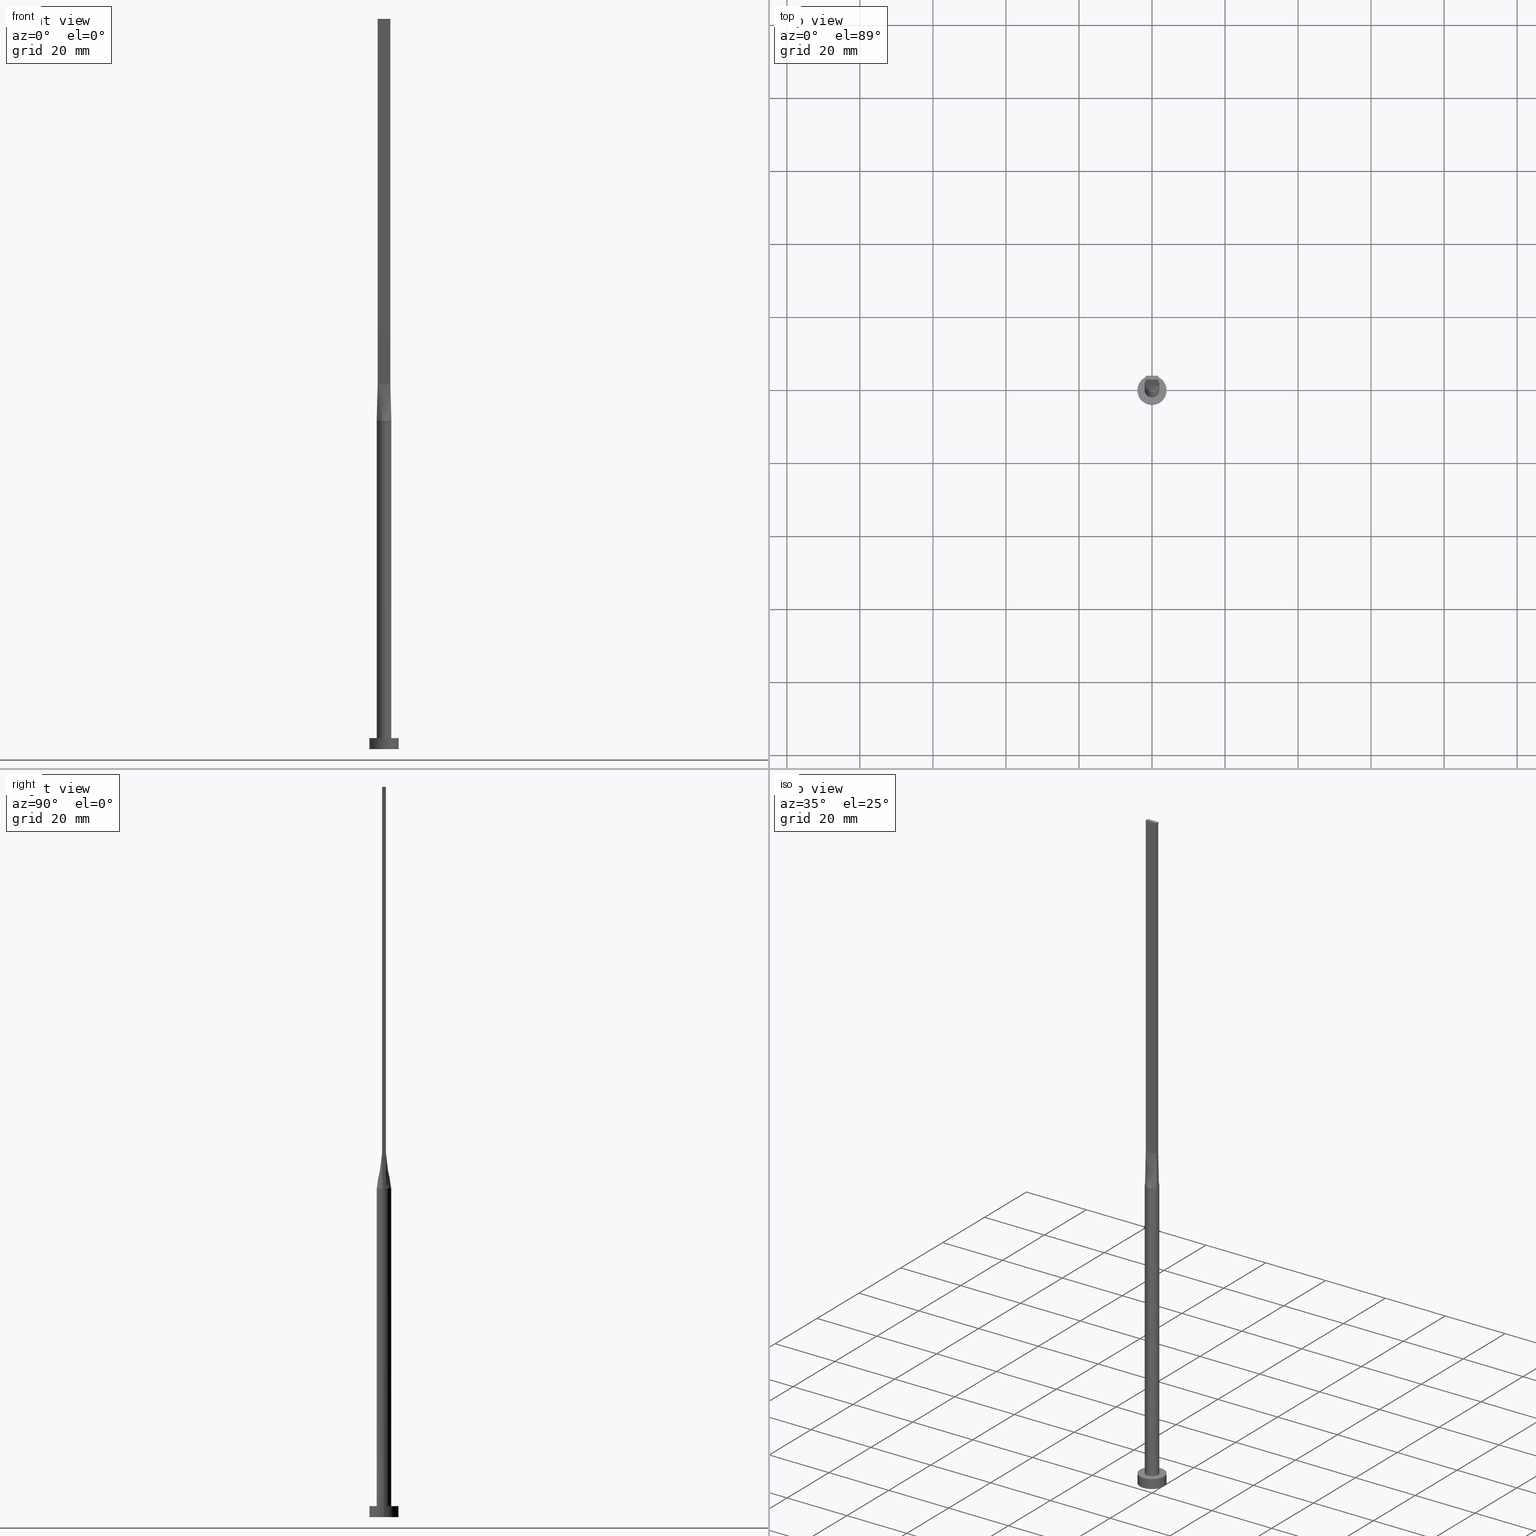
[diagram: canonical four-view strip — front | top / right | iso, engineering-drawing reading convention]
A machine part, canonical four-view strip (front | top / right | iso — engineering-drawing reading convention). The complete STEP part file that produces these views, byte-faithful:
ISO-10303-21;
HEADER;
FILE_DESCRIPTION (( 'STEP AP203' ),
    '1' );
FILE_NAME ('7435.STEP',
    '2026-02-12T09:06:15',
    ( '' ),
    ( '' ),
    'SwSTEP 2.0',
    'SolidWorks 2019',
    '' );
FILE_SCHEMA (( 'CONFIG_CONTROL_DESIGN' ));
ENDSEC;

DATA;
#1 = CYLINDRICAL_SURFACE ( 'NONE', #232, 4.000000000000000000 ) ;
#2 = PERSON_AND_ORGANIZATION ( #322, #56 ) ;
#3 = ADVANCED_FACE ( 'NONE', ( #273 ), #359, .T. ) ;
#4 = PERSON_AND_ORGANIZATION_ROLE ( 'design_supplier' ) ;
#5 = CARTESIAN_POINT ( 'NONE',  ( -1.923179810488875541, 0.5494804890868837388, 90.00000000000000000 ) ) ;
#6 = PRODUCT_RELATED_PRODUCT_CATEGORY ( 'detail', '', ( #287 ) ) ;
#7 = DIRECTION ( 'NONE',  ( 0.000000000000000000, -1.000000000000000000, 0.000000000000000000 ) ) ;
#8 = AXIS2_PLACEMENT_3D ( 'NONE', #415, #7, #186 ) ;
#9 = DIRECTION ( 'NONE',  ( 0.000000000000000000, 0.000000000000000000, 1.000000000000000000 ) ) ;
#10 = DIRECTION ( 'NONE',  ( 0.000000000000000000, 0.000000000000000000, 1.000000000000000000 ) ) ;
#11 = DIRECTION ( 'NONE',  ( 0.000000000000000000, 0.000000000000000000, 1.000000000000000000 ) ) ;
#12 = VERTEX_POINT ( 'NONE', #581 ) ;
#13 = LINE ( 'NONE', #286, #50 ) ;
#14 = CARTESIAN_POINT ( 'NONE',  ( -1.923047895281646102, 0.5494422557947564734, 90.00000000000000000 ) ) ;
#15 = ORIENTED_EDGE ( 'NONE', *, *, #410, .T. ) ;
#16 = VECTOR ( 'NONE', #502, 1000.000000000000000 ) ;
#17 = ADVANCED_FACE ( 'NONE', ( #131 ), #568, .F. ) ;
#18 = CARTESIAN_POINT ( 'NONE',  ( -1.973362360690451345, -0.3733416268639377367, 90.00000000000000000 ) ) ;
#19 = CARTESIAN_POINT ( 'NONE',  ( 1.749999999999999778, 0.3333333333333335369, 99.99999999999997158 ) ) ;
#20 = CARTESIAN_POINT ( 'NONE',  ( -1.750000000000000000, -0.4999999999999995559, 99.99999999999998579 ) ) ;
#21 = EDGE_LOOP ( 'NONE', ( #483, #456, #60, #556 ) ) ;
#22 = AXIS2_PLACEMENT_3D ( 'NONE', #197, #485, #95 ) ;
#23 = CARTESIAN_POINT ( 'NONE',  ( 0.000000000000000000, 0.000000000000000000, 3.000000000000000000 ) ) ;
#24 = CARTESIAN_POINT ( 'NONE',  ( 0.5833333333333323711, 0.5000000000000002220, 99.99999999999997158 ) ) ;
#25 = MANIFOLD_SOLID_BREP ( 'P�idat vysunut�m5', #180 ) ;
#26 = ORIENTED_EDGE ( 'NONE', *, *, #168, .T. ) ;
#27 = CARTESIAN_POINT ( 'NONE',  ( -4.000000000000000000, 0.000000000000000000, 3.000000000000000000 ) ) ;
#28 = LOCAL_TIME ( 10, 6, 15.00000000000000000, #97 ) ;
#29 = DIRECTION ( 'NONE',  ( 0.000000000000000000, 0.000000000000000000, 1.000000000000000000 ) ) ;
#30 = CARTESIAN_POINT ( 'NONE',  ( -0.2514338042514540073, -1.999999999999999112, 90.00000000000000000 ) ) ;
#31 = ORIENTED_EDGE ( 'NONE', *, *, #316, .T. ) ;
#32 = DIRECTION ( 'NONE',  ( -0.000000000000000000, -0.000000000000000000, -1.000000000000000000 ) ) ;
#33 = CARTESIAN_POINT ( 'NONE',  ( 1.604166666666666963, -0.4999999999999997780, 99.99999999999997158 ) ) ;
#34 = PRODUCT_DEFINITION ( 'NEZN�M�', '', #115, #396 ) ;
#35 = EDGE_LOOP ( 'NONE', ( #383, #43, #491, #268, #528, #169 ) ) ;
#36 = CARTESIAN_POINT ( 'NONE',  ( -0.1458333333333339810, 0.5000000000000002220, 99.99999999999997158 ) ) ;
#37 = CARTESIAN_POINT ( 'NONE',  ( 0.5022746254375793917, -1.951069421695588169, 90.00000000000000000 ) ) ;
#38 = VERTEX_POINT ( 'NONE', #124 ) ;
#39 = CYLINDRICAL_SURFACE ( 'NONE', #52, 4.000000000000000000 ) ;
#40 = CARTESIAN_POINT ( 'NONE',  ( -1.812374357931688884, 0.8669367617086288780, 90.00000000000001421 ) ) ;
#41 = ADVANCED_FACE ( 'NONE', ( #389 ), #85, .F. ) ;
#42 = AXIS2_PLACEMENT_3D ( 'NONE', #495, #275, #535 ) ;
#43 = ORIENTED_EDGE ( 'NONE', *, *, #346, .F. ) ;
#44 = PERSON_AND_ORGANIZATION ( #322, #56 ) ;
#45 = CARTESIAN_POINT ( 'NONE',  ( -0.2916666666666674068, 0.5000000000000002220, 99.99999999999997158 ) ) ;
#46 = DIRECTION ( 'NONE',  ( 0.000000000000000000, 0.000000000000000000, 1.000000000000000000 ) ) ;
#47 = DATE_AND_TIME ( #402, #28 ) ;
#48 = CARTESIAN_POINT ( 'NONE',  ( 0.000000000000000000, 0.000000000000000000, 0.000000000000000000 ) ) ;
#49 = EDGE_CURVE ( 'NONE', #266, #305, #242, .T. ) ;
#50 = VECTOR ( 'NONE', #236, 1000.000000000000000 ) ;
#51 = EDGE_CURVE ( 'NONE', #501, #38, #463, .T. ) ;
#52 = AXIS2_PLACEMENT_3D ( 'NONE', #134, #143, #319 ) ;
#53 = VECTOR ( 'NONE', #156, 1000.000000000000000 ) ;
#54 = LINE ( 'NONE', #368, #397 ) ;
#55 = CYLINDRICAL_SURFACE ( 'NONE', #448, 2.000000000000000000 ) ;
#56 = ORGANIZATION ( 'NEUR�EN�', 'NEUR�EN�', '' ) ;
#57 = B_SPLINE_SURFACE_WITH_KNOTS ( 'NONE', 3, 1, ( 
 ( #14, #250 ),
 ( #434, #160 ),
 ( #254, #567 ),
 ( #558, #334 ),
 ( #18, #194 ),
 ( #83, #116 ) ),
 .UNSPECIFIED., .F., .F., .F.,
 ( 4, 2, 4 ),
 ( 2, 2 ),
 ( 0.000000000000000000, 0.5000000000000000000, 1.000000000000000000 ),
 ( 0.000000000000000000, 1.000000000000000000 ),
 .UNSPECIFIED. ) ;
#58 = LINE ( 'NONE', #188, #533 ) ;
#59 = EDGE_CURVE ( 'NONE', #12, #82, #557, .T. ) ;
#60 = ORIENTED_EDGE ( 'NONE', *, *, #551, .F. ) ;
#61 = CARTESIAN_POINT ( 'NONE',  ( -1.155438169178558017, 1.647245198242353936, 90.00000000000004263 ) ) ;
#62 = EDGE_CURVE ( 'NONE', #82, #204, #342, .T. ) ;
#63 = ORIENTED_EDGE ( 'NONE', *, *, #546, .T. ) ;
#64 = FACE_OUTER_BOUND ( 'NONE', #253, .T. ) ;
#65 = CARTESIAN_POINT ( 'NONE',  ( 1.879022738048942154, 0.7035303061092218480, 90.00000000000001421 ) ) ;
#66 = DIRECTION ( 'NONE',  ( 1.000000000000000000, 0.000000000000000000, 0.000000000000000000 ) ) ;
#67 = DIRECTION ( 'NONE',  ( -1.000000000000000000, 0.000000000000000000, 0.000000000000000000 ) ) ;
#68 = ORIENTED_EDGE ( 'NONE', *, *, #346, .T. ) ;
#69 = CIRCLE ( 'NONE', #42, 2.000000000000000000 ) ;
#70 = ADVANCED_FACE ( 'NONE', ( #490 ), #366, .T. ) ;
#71 = DATE_AND_TIME ( #164, #363 ) ;
#72 = CARTESIAN_POINT ( 'NONE',  ( 1.486037034853319616, 1.356520562679217834, 90.00000000000001421 ) ) ;
#73 = CARTESIAN_POINT ( 'NONE',  ( 1.155438169178558461, 1.647245198242353714, 90.00000000000001421 ) ) ;
#74 = DIRECTION ( 'NONE',  ( 1.000000000000000000, -6.195440985631454085E-17, 0.000000000000000000 ) ) ;
#75 = VECTOR ( 'NONE', #103, 1000.000000000000000 ) ;
#76 = CARTESIAN_POINT ( 'NONE',  ( 1.836523947640823051, -0.5247211278973777926, 95.00000000000000000 ) ) ;
#77 = ORIENTED_EDGE ( 'NONE', *, *, #510, .F. ) ;
#78 = VECTOR ( 'NONE', #267, 1000.000000000000114 ) ;
#79 = CARTESIAN_POINT ( 'NONE',  ( 1.923154993136894975, 0.5494733089275741778, 90.00000000000000000 ) ) ;
#80 = FACE_OUTER_BOUND ( 'NONE', #313, .T. ) ;
#81 = CARTESIAN_POINT ( 'NONE',  ( 1.879022738048941710, -0.7035303061092221810, 90.00000000000001421 ) ) ;
#82 = VERTEX_POINT ( 'NONE', #302 ) ;
#83 = CARTESIAN_POINT ( 'NONE',  ( -1.923047895281646547, -0.5494422557947552521, 90.00000000000000000 ) ) ;
#84 = LINE ( 'NONE', #344, #139 ) ;
#85 = PLANE ( 'NONE',  #248 ) ;
#86 = CARTESIAN_POINT ( 'NONE',  ( 0.000000000000000000, 0.000000000000000000, 3.000000000000000000 ) ) ;
#87 = LINE ( 'NONE', #260, #547 ) ;
#88 = CARTESIAN_POINT ( 'NONE',  ( -1.812374357931689994, -0.8669367617086277678, 90.00000000000001421 ) ) ;
#89 = EDGE_LOOP ( 'NONE', ( #178, #425, #343, #63 ) ) ;
#90 = DIRECTION ( 'NONE',  ( -2.168404344971008868E-16, 1.000000000000000000, 0.000000000000000000 ) ) ;
#91 = CARTESIAN_POINT ( 'NONE',  ( -0.2514338042514528415, 1.999999999999999556, 90.00000000000001421 ) ) ;
#92 = ORIENTED_EDGE ( 'NONE', *, *, #519, .T. ) ;
#93 = ORIENTED_EDGE ( 'NONE', *, *, #179, .F. ) ;
#94 = DIRECTION ( 'NONE',  ( 1.000000000000000000, 0.000000000000000000, -0.000000000000000000 ) ) ;
#95 = DIRECTION ( 'NONE',  ( 1.000000000000000000, 0.000000000000000000, 0.000000000000000000 ) ) ;
#96 = ORIENTED_EDGE ( 'NONE', *, *, #450, .F. ) ;
#97 = COORDINATED_UNIVERSAL_TIME_OFFSET ( 1, 0, .AHEAD. ) ;
#98 = CARTESIAN_POINT ( 'NONE',  ( 0.000000000000000000, 0.000000000000000000, 3.000000000000000000 ) ) ;
#99 = CARTESIAN_POINT ( 'NONE',  ( -1.923047895281646325, 0.5494422557947555852, 90.00000000000000000 ) ) ;
#100 = CIRCLE ( 'NONE', #492, 2.000000000000000000 ) ;
#101 = APPROVAL_STATUS ( 'not_yet_approved' ) ;
#102 = ORIENTED_EDGE ( 'NONE', *, *, #372, .F. ) ;
#103 = DIRECTION ( 'NONE',  ( -0.000000000000000000, -0.000000000000000000, -1.000000000000000000 ) ) ;
#104 = ADVANCED_FACE ( 'NONE', ( #205 ), #57, .T. ) ;
#105 = CC_DESIGN_APPROVAL ( #362, ( #115 ) ) ;
#106 = DIRECTION ( 'NONE',  ( 0.000000000000000000, 0.000000000000000000, 1.000000000000000000 ) ) ;
#107 = PERSON_AND_ORGANIZATION ( #322, #56 ) ;
#108 = CIRCLE ( 'NONE', #149, 4.000000000000000000 ) ;
#109 = ADVANCED_FACE ( 'NONE', ( #373 ), #428, .T. ) ;
#110 = EDGE_LOOP ( 'NONE', ( #68, #473, #171, #370, #540 ) ) ;
#111 = LINE ( 'NONE', #550, #328 ) ;
#112 = B_SPLINE_SURFACE_WITH_KNOTS ( 'NONE', 3, 1, ( 
 ( #357, #523 ),
 ( #317, #117 ),
 ( #294, #476 ),
 ( #241, #563 ),
 ( #376, #481 ),
 ( #73, #246 ),
 ( #435, #24 ),
 ( #212, #580 ),
 ( #449, #176 ),
 ( #91, #36 ),
 ( #392, #45 ),
 ( #222, #572 ),
 ( #349, #264 ),
 ( #403, #216 ),
 ( #138, #182 ),
 ( #40, #358 ),
 ( #395, #542 ),
 ( #99, #141 ) ),
 .UNSPECIFIED., .F., .F., .F.,
 ( 4, 2, 2, 2, 2, 2, 2, 2, 4 ),
 ( 2, 2 ),
 ( 0.000000000000000000, 0.1249999999999999722, 0.2500000000000000000, 0.3750000000000000000, 0.5000000000000001110, 0.6250000000000001110, 0.7500000000000000000, 0.8750000000000000000, 1.000000000000000000 ),
 ( 0.000000000000000000, 1.000000000000000000 ),
 .UNSPECIFIED. ) ;
#113 = ORIENTED_EDGE ( 'NONE', *, *, #410, .F. ) ;
#114 = DIRECTION ( 'NONE',  ( -0.000000000000000000, -0.000000000000000000, -1.000000000000000000 ) ) ;
#115 = PRODUCT_DEFINITION_FORMATION_WITH_SPECIFIED_SOURCE ( 'LIBOVOLN�', '', #287, .NOT_KNOWN. ) ;
#116 = CARTESIAN_POINT ( 'NONE',  ( -1.750000000000000000, -0.4999999999999995559, 99.99999999999998579 ) ) ;
#117 = CARTESIAN_POINT ( 'NONE',  ( 1.604166666666665630, 0.5000000000000002220, 99.99999999999997158 ) ) ;
#118 = APPROVAL_DATE_TIME ( #196, #362 ) ;
#119 = APPROVAL ( #579, 'NEUR�EN�' ) ;
#120 = CARTESIAN_POINT ( 'NONE',  ( 1.166666666666666963, -0.4999999999999997780, 99.99999999999997158 ) ) ;
#121 = ORIENTED_EDGE ( 'NONE', *, *, #168, .F. ) ;
#122 = CARTESIAN_POINT ( 'NONE',  ( 0.000000000000000000, 0.000000000000000000, 90.00000000000000000 ) ) ;
#123 = CARTESIAN_POINT ( 'NONE',  ( 1.749999999999999778, 0.1666666666666668795, 99.99999999999997158 ) ) ;
#124 = CARTESIAN_POINT ( 'NONE',  ( 1.923154993136894975, 0.5494733089275741778, 90.00000000000000000 ) ) ;
#125 = VERTEX_POINT ( 'NONE', #170 ) ;
#126 = CARTESIAN_POINT ( 'NONE',  ( -0.5022746254375797248, 1.951069421695588169, 90.00000000000000000 ) ) ;
#127 = FACE_OUTER_BOUND ( 'NONE', #469, .T. ) ;
#128 = CARTESIAN_POINT ( 'NONE',  ( 1.750000000000000000, -0.4999999999999997780, 200.0000000000000000 ) ) ;
#129 = VERTEX_POINT ( 'NONE', #555 ) ;
#130 = CARTESIAN_POINT ( 'NONE',  ( 1.616149014776643522, 1.193458220519943103, 89.99999999999995737 ) ) ;
#131 = FACE_OUTER_BOUND ( 'NONE', #531, .T. ) ;
#132 = CC_DESIGN_SECURITY_CLASSIFICATION ( #545, ( #115 ) ) ;
#133 = DIRECTION ( 'NONE',  ( 1.000000000000000000, -2.168404344971009361E-16, 0.000000000000000000 ) ) ;
#134 = CARTESIAN_POINT ( 'NONE',  ( 0.000000000000000000, 0.000000000000000000, 3.000000000000000000 ) ) ;
#135 = EDGE_CURVE ( 'NONE', #390, #125, #577, .T. ) ;
#136 = VERTEX_POINT ( 'NONE', #27 ) ;
#137 = CARTESIAN_POINT ( 'NONE',  ( 1.750000000000000000, -0.4999999999999997780, 200.0000000000000000 ) ) ;
#138 = CARTESIAN_POINT ( 'NONE',  ( -1.616149014776643966, 1.193458220519943103, 90.00000000000001421 ) ) ;
#139 = VECTOR ( 'NONE', #32, 1000.000000000000000 ) ;
#140 = PERSON_AND_ORGANIZATION ( #322, #56 ) ;
#141 = CARTESIAN_POINT ( 'NONE',  ( -1.749999999999999778, 0.5000000000000002220, 99.99999999999998579 ) ) ;
#142 = LINE ( 'NONE', #335, #78 ) ;
#143 = DIRECTION ( 'NONE',  ( -0.000000000000000000, -0.000000000000000000, -1.000000000000000000 ) ) ;
#144 = CC_DESIGN_PERSON_AND_ORGANIZATION_ASSIGNMENT ( #466, #548, ( #287 ) ) ;
#145 = LOCAL_TIME ( 10, 6, 15.00000000000000000, #274 ) ;
#146 = APPROVAL_ROLE ( '' ) ;
#147 = EDGE_CURVE ( 'NONE', #266, #235, #384, .T. ) ;
#148 = DIRECTION ( 'NONE',  ( -2.168404344971009361E-16, -1.000000000000000000, 0.000000000000000000 ) ) ;
#149 = AXIS2_PLACEMENT_3D ( 'NONE', #341, #29, #66 ) ;
#150 = CARTESIAN_POINT ( 'NONE',  ( 1.750000000000000000, -0.4999999999999997780, 200.0000000000000000 ) ) ;
#151 = EDGE_CURVE ( 'NONE', #195, #266, #340, .T. ) ;
#152 = VECTOR ( 'NONE', #114, 1000.000000000000000 ) ;
#153 = ORIENTED_EDGE ( 'NONE', *, *, #510, .T. ) ;
#154 = CARTESIAN_POINT ( 'NONE',  ( -4.000000000000000000, 0.000000000000000000, 0.000000000000000000 ) ) ;
#155 = EDGE_CURVE ( 'NONE', #561, #159, #522, .T. ) ;
#156 = DIRECTION ( 'NONE',  ( -2.168404344971009361E-16, -1.000000000000000000, 0.000000000000000000 ) ) ;
#157 = VECTOR ( 'NONE', #203, 1000.000000000000114 ) ;
#158 = CARTESIAN_POINT ( 'NONE',  ( 1.616149014776643522, -1.193458220519943547, 90.00000000000001421 ) ) ;
#159 = VERTEX_POINT ( 'NONE', #306 ) ;
#160 = CARTESIAN_POINT ( 'NONE',  ( -1.749999999999999778, 0.3333333333333335924, 99.99999999999997158 ) ) ;
#161 = CARTESIAN_POINT ( 'NONE',  ( 1.750000000000000000, -0.4999999999999997780, 99.99999999999998579 ) ) ;
#162 = CARTESIAN_POINT ( 'NONE',  ( 0.5833333333333344806, -0.4999999999999997780, 99.99999999999997158 ) ) ;
#163 = ORIENTED_EDGE ( 'NONE', *, *, #271, .T. ) ;
#164 = CALENDAR_DATE ( 2026, 12, 2 ) ;
#165 = DIRECTION ( 'NONE',  ( 1.000000000000000000, 0.000000000000000000, 0.000000000000000000 ) ) ;
#166 = CARTESIAN_POINT ( 'NONE',  ( -1.879022738048941710, 0.7035303061092221810, 90.00000000000001421 ) ) ;
#167 = CARTESIAN_POINT ( 'NONE',  ( -1.458333333333332815, -0.4999999999999995559, 99.99999999999997158 ) ) ;
#168 = EDGE_CURVE ( 'NONE', #38, #538, #406, .T. ) ;
#169 = ORIENTED_EDGE ( 'NONE', *, *, #135, .T. ) ;
#170 = CARTESIAN_POINT ( 'NONE',  ( 2.000000000000000000, 2.449293598294706414E-16, 3.000000000000000000 ) ) ;
#171 = ORIENTED_EDGE ( 'NONE', *, *, #177, .T. ) ;
#172 = APPROVAL_PERSON_ORGANIZATION ( #107, #362, #146 ) ;
#173 =( NAMED_UNIT ( * ) PLANE_ANGLE_UNIT ( ) SI_UNIT ( $, .RADIAN. ) );
#174 = CARTESIAN_POINT ( 'NONE',  ( -0.5022746254375808350, -1.951069421695587724, 89.99999999999998579 ) ) ;
#175 = ORIENTED_EDGE ( 'NONE', *, *, #450, .T. ) ;
#176 = CARTESIAN_POINT ( 'NONE',  ( 0.1458333333333327320, 0.5000000000000002220, 99.99999999999997158 ) ) ;
#177 = EDGE_CURVE ( 'NONE', #38, #159, #142, .T. ) ;
#178 = ORIENTED_EDGE ( 'NONE', *, *, #320, .T. ) ;
#179 = EDGE_CURVE ( 'NONE', #136, #552, #283, .T. ) ;
#180 = CLOSED_SHELL ( 'NONE', ( #109, #472, #244, #224, #277, #544, #70, #211, #104, #234, #426, #41, #405, #17, #3 ) ) ;
#181 = CARTESIAN_POINT ( 'NONE',  ( -4.000000000000000000, 0.000000000000000000, 3.000000000000000000 ) ) ;
#182 = CARTESIAN_POINT ( 'NONE',  ( -1.166666666666666519, 0.5000000000000002220, 99.99999999999997158 ) ) ;
#183 = DIRECTION ( 'NONE',  ( 1.000000000000000000, 0.000000000000000000, 0.000000000000000000 ) ) ;
#184 = DATE_AND_TIME ( #455, #285 ) ;
#185 = CALENDAR_DATE ( 2026, 12, 2 ) ;
#186 = DIRECTION ( 'NONE',  ( 0.000000000000000000, -0.000000000000000000, -1.000000000000000000 ) ) ;
#187 = APPLICATION_PROTOCOL_DEFINITION ( 'international standard', 'config_control_design', 1994, #284 ) ;
#188 = CARTESIAN_POINT ( 'NONE',  ( -1.836523947640823051, 0.5247211278973779036, 95.00000000000000000 ) ) ;
#189 = DIRECTION ( 'NONE',  ( 1.000000000000000000, 0.000000000000000000, 0.000000000000000000 ) ) ;
#190 = EDGE_CURVE ( 'NONE', #478, #378, #108, .T. ) ;
#191 = DIRECTION ( 'NONE',  ( 0.01730198768854153066, -0.004943425053868934910, 0.9998380887777591486 ) ) ;
#192 = EDGE_LOOP ( 'NONE', ( #210, #220, #444, #238, #258, #121 ) ) ;
#193 = CC_DESIGN_PERSON_AND_ORGANIZATION_ASSIGNMENT ( #44, #4, ( #115 ) ) ;
#194 = CARTESIAN_POINT ( 'NONE',  ( -1.749999999999999778, -0.3333333333333328707, 99.99999999999997158 ) ) ;
#195 = VERTEX_POINT ( 'NONE', #353 ) ;
#196 = DATE_AND_TIME ( #474, #458 ) ;
#197 = CARTESIAN_POINT ( 'NONE',  ( 0.000000000000000000, 0.000000000000000000, 3.000000000000000000 ) ) ;
#198 = AXIS2_PLACEMENT_3D ( 'NONE', #122, #380, #297 ) ;
#199 = CARTESIAN_POINT ( 'NONE',  ( -1.155438169178558461, -1.647245198242353714, 90.00000000000001421 ) ) ;
#200 = CC_DESIGN_APPROVAL ( #323, ( #34 ) ) ;
#201 = CARTESIAN_POINT ( 'NONE',  ( 0.2514338042514535632, 1.999999999999999556, 90.00000000000000000 ) ) ;
#202 = CARTESIAN_POINT ( 'NONE',  ( 1.749999999999999778, -0.1666666666666664354, 99.99999999999997158 ) ) ;
#203 = DIRECTION ( 'NONE',  ( -0.01730198768854150984, 0.004943425053869000829, 0.9998380887777591486 ) ) ;
#204 = VERTEX_POINT ( 'NONE', #518 ) ;
#205 = FACE_OUTER_BOUND ( 'NONE', #488, .T. ) ;
#206 = CARTESIAN_POINT ( 'NONE',  ( 1.999999999999999556, 0.1867399261870121008, 89.99999999999997158 ) ) ;
#207 = CARTESIAN_POINT ( 'NONE',  ( -1.616149014776643744, -1.193458220519941326, 89.99999999999998579 ) ) ;
#208 = EDGE_LOOP ( 'NONE', ( #423, #348 ) ) ;
#209 = CARTESIAN_POINT ( 'NONE',  ( 1.923047895281646325, -0.5494422557947558072, 90.00000000000000000 ) ) ;
#210 = ORIENTED_EDGE ( 'NONE', *, *, #51, .F. ) ;
#211 = ADVANCED_FACE ( 'NONE', ( #536 ), #369, .T. ) ;
#212 = CARTESIAN_POINT ( 'NONE',  ( 0.5022746254375803909, 1.951069421695587947, 90.00000000000001421 ) ) ;
#213 = CARTESIAN_POINT ( 'NONE',  ( 0.9545234919502404436, -1.774214358793530177, 90.00000000000001421 ) ) ;
#214 = ORIENTED_EDGE ( 'NONE', *, *, #468, .F. ) ;
#215 = CC_DESIGN_DATE_AND_TIME_ASSIGNMENT ( #47, #457, ( #545 ) ) ;
#216 = CARTESIAN_POINT ( 'NONE',  ( -1.020833333333333481, 0.5000000000000002220, 99.99999999999997158 ) ) ;
#217 = DIRECTION ( 'NONE',  ( -1.000000000000000000, 0.000000000000000000, 0.000000000000000000 ) ) ;
#218 = CARTESIAN_POINT ( 'NONE',  ( 1.749999999999999778, 0.5000000000000002220, 99.99999999999998579 ) ) ;
#219 = ORIENTED_EDGE ( 'NONE', *, *, #190, .T. ) ;
#220 = ORIENTED_EDGE ( 'NONE', *, *, #361, .T. ) ;
#221 = PERSON_AND_ORGANIZATION_ROLE ( 'classification_officer' ) ;
#222 = CARTESIAN_POINT ( 'NONE',  ( -0.9545234919502401105, 1.774214358793530177, 90.00000000000000000 ) ) ;
#223 = CARTESIAN_POINT ( 'NONE',  ( 0.000000000000000000, 0.000000000000000000, 200.0000000000000000 ) ) ;
#224 = ADVANCED_FACE ( 'NONE', ( #452, #127 ), #429, .T. ) ;
#225 = CARTESIAN_POINT ( 'NONE',  ( 4.000000000000000000, 4.898587196589412829E-16, 0.000000000000000000 ) ) ;
#226 = AXIS2_PLACEMENT_3D ( 'NONE', #128, #345, #477 ) ;
#227 = CIRCLE ( 'NONE', #559, 4.000000000000000000 ) ;
#228 = PLANE ( 'NONE',  #8 ) ;
#229 = CARTESIAN_POINT ( 'NONE',  ( 0.000000000000000000, 0.000000000000000000, 90.00000000000000000 ) ) ;
#230 = CARTESIAN_POINT ( 'NONE',  ( 0.000000000000000000, 0.000000000000000000, 90.00000000000000000 ) ) ;
#231 = CARTESIAN_POINT ( 'NONE',  ( 0.000000000000000000, 0.000000000000000000, 3.000000000000000000 ) ) ;
#232 = AXIS2_PLACEMENT_3D ( 'NONE', #86, #259, #504 ) ;
#233 = CARTESIAN_POINT ( 'NONE',  ( -1.749999999999999778, 0.5000000000000002220, 99.99999999999998579 ) ) ;
#234 = ADVANCED_FACE ( 'NONE', ( #80 ), #112, .T. ) ;
#235 = VERTEX_POINT ( 'NONE', #398 ) ;
#236 = DIRECTION ( 'NONE',  ( -2.168404344971008868E-16, 1.000000000000000000, -0.000000000000000000 ) ) ;
#237 = CARTESIAN_POINT ( 'NONE',  ( -1.486037034853319616, 1.356520562679218056, 90.00000000000004263 ) ) ;
#238 = ORIENTED_EDGE ( 'NONE', *, *, #256, .F. ) ;
#239 = LINE ( 'NONE', #288, #270 ) ;
#240 = CARTESIAN_POINT ( 'NONE',  ( 0.9545234919502409987, 1.774214358793529955, 90.00000000000001421 ) ) ;
#241 = CARTESIAN_POINT ( 'NONE',  ( 1.616149014776643522, 1.193458220519943103, 89.99999999999995737 ) ) ;
#242 = LINE ( 'NONE', #436, #375 ) ;
#243 = EDGE_LOOP ( 'NONE', ( #175, #431, #578, #509 ) ) ;
#244 = ADVANCED_FACE ( 'NONE', ( #532 ), #39, .T. ) ;
#245 = CARTESIAN_POINT ( 'NONE',  ( 0.5022746254375803909, 1.951069421695587947, 90.00000000000001421 ) ) ;
#246 = CARTESIAN_POINT ( 'NONE',  ( 0.7291666666666657415, 0.5000000000000002220, 99.99999999999997158 ) ) ;
#247 = CARTESIAN_POINT ( 'NONE',  ( -1.749999999999999778, 0.5000000000000002220, 99.99999999999998579 ) ) ;
#248 = AXIS2_PLACEMENT_3D ( 'NONE', #393, #133, #347 ) ;
#249 = CARTESIAN_POINT ( 'NONE',  ( -1.879022738048942598, -0.7035303061092208488, 90.00000000000001421 ) ) ;
#250 = CARTESIAN_POINT ( 'NONE',  ( -1.749999999999999778, 0.5000000000000002220, 99.99999999999998579 ) ) ;
#251 = CARTESIAN_POINT ( 'NONE',  ( 1.973362360690451567, 0.3733416268639386804, 90.00000000000000000 ) ) ;
#252 = DIRECTION ( 'NONE',  ( 1.000000000000000000, 0.000000000000000000, 0.000000000000000000 ) ) ;
#253 = EDGE_LOOP ( 'NONE', ( #400, #113, #263, #441 ) ) ;
#254 = CARTESIAN_POINT ( 'NONE',  ( -1.999999999999999556, 0.1867399261870127114, 90.00000000000001421 ) ) ;
#255 =( NAMED_UNIT ( * ) SI_UNIT ( $, .STERADIAN. ) SOLID_ANGLE_UNIT ( ) );
#256 = EDGE_CURVE ( 'NONE', #129, #390, #573, .T. ) ;
#257 = CARTESIAN_POINT ( 'NONE',  ( 0.2916666666666679064, -0.4999999999999997780, 99.99999999999997158 ) ) ;
#258 = ORIENTED_EDGE ( 'NONE', *, *, #519, .F. ) ;
#259 = DIRECTION ( 'NONE',  ( -0.000000000000000000, -0.000000000000000000, -1.000000000000000000 ) ) ;
#260 = CARTESIAN_POINT ( 'NONE',  ( 1.749999999999999778, 0.5000000000000002220, 200.0000000000000000 ) ) ;
#261 = CARTESIAN_POINT ( 'NONE',  ( -0.7291666666666655194, -0.4999999999999995559, 99.99999999999997158 ) ) ;
#262 = CC_DESIGN_PERSON_AND_ORGANIZATION_ASSIGNMENT ( #140, #221, ( #545 ) ) ;
#263 = ORIENTED_EDGE ( 'NONE', *, *, #49, .F. ) ;
#264 = CARTESIAN_POINT ( 'NONE',  ( -0.7291666666666671848, 0.5000000000000002220, 99.99999999999997158 ) ) ;
#265 = AXIS2_PLACEMENT_3D ( 'NONE', #465, #9, #279 ) ;
#266 = VERTEX_POINT ( 'NONE', #311 ) ;
#267 = DIRECTION ( 'NONE',  ( -0.01730198768854153066, -0.004943425053869011238, 0.9998380887777591486 ) ) ;
#268 = ORIENTED_EDGE ( 'NONE', *, *, #271, .F. ) ;
#269 = SECURITY_CLASSIFICATION_LEVEL ( 'unclassified' ) ;
#270 = VECTOR ( 'NONE', #549, 1000.000000000000000 ) ;
#271 = EDGE_CURVE ( 'NONE', #129, #12, #69, .T. ) ;
#272 = COORDINATED_UNIVERSAL_TIME_OFFSET ( 1, 0, .AHEAD. ) ;
#273 = FACE_OUTER_BOUND ( 'NONE', #574, .T. ) ;
#274 = COORDINATED_UNIVERSAL_TIME_OFFSET ( 1, 0, .AHEAD. ) ;
#275 = DIRECTION ( 'NONE',  ( 0.000000000000000000, 0.000000000000000000, 1.000000000000000000 ) ) ;
#276 = APPLICATION_CONTEXT ( 'configuration controlled 3d designs of mechanical parts and assemblies' ) ;
#277 = ADVANCED_FACE ( 'NONE', ( #497 ), #459, .F. ) ;
#278 = PERSON_AND_ORGANIZATION ( #322, #56 ) ;
#279 = DIRECTION ( 'NONE',  ( 1.000000000000000000, 0.000000000000000000, 0.000000000000000000 ) ) ;
#280 = APPROVAL_STATUS ( 'not_yet_approved' ) ;
#281 = EDGE_CURVE ( 'NONE', #561, #195, #87, .T. ) ;
#282 = FACE_OUTER_BOUND ( 'NONE', #35, .T. ) ;
#283 = CIRCLE ( 'NONE', #22, 4.000000000000000000 ) ;
#284 = APPLICATION_CONTEXT ( 'configuration controlled 3d designs of mechanical parts and assemblies' ) ;
#285 = LOCAL_TIME ( 10, 6, 15.00000000000000000, #272 ) ;
#286 = CARTESIAN_POINT ( 'NONE',  ( 1.749999999999999778, 0.5000000000000002220, 99.99999999999998579 ) ) ;
#287 = PRODUCT ( '7435', '7435', '', ( #364 ) ) ;
#288 = CARTESIAN_POINT ( 'NONE',  ( 4.000000000000000000, 4.898587196589412829E-16, 3.000000000000000000 ) ) ;
#289 = DIRECTION ( 'NONE',  ( -0.000000000000000000, -0.000000000000000000, -1.000000000000000000 ) ) ;
#290 = CARTESIAN_POINT ( 'NONE',  ( 1.155438169178558461, 1.647245198242353714, 90.00000000000001421 ) ) ;
#291 = ORIENTED_EDGE ( 'NONE', *, *, #281, .T. ) ;
#292 = COORDINATED_UNIVERSAL_TIME_OFFSET ( 1, 0, .AHEAD. ) ;
#293 = CARTESIAN_POINT ( 'NONE',  ( -1.749999999999999778, 0.5000000000000002220, 200.0000000000000000 ) ) ;
#294 = CARTESIAN_POINT ( 'NONE',  ( 1.812374357931689328, 0.8669367617086293221, 90.00000000000001421 ) ) ;
#295 = PERSON_AND_ORGANIZATION ( #322, #56 ) ;
#296 = CARTESIAN_POINT ( 'NONE',  ( -0.9545234919502417759, -1.774214358793529067, 90.00000000000001421 ) ) ;
#297 = DIRECTION ( 'NONE',  ( -1.000000000000000000, 0.000000000000000000, 0.000000000000000000 ) ) ;
#298 = CARTESIAN_POINT ( 'NONE',  ( 0.000000000000000000, 0.000000000000000000, 3.000000000000000000 ) ) ;
#299 = CIRCLE ( 'NONE', #521, 2.000000000000000000 ) ;
#300 = CARTESIAN_POINT ( 'NONE',  ( -1.486037034853320060, -1.356520562679217390, 89.99999999999997158 ) ) ;
#301 = EDGE_LOOP ( 'NONE', ( #539, #93, #31, #570 ) ) ;
#302 = CARTESIAN_POINT ( 'NONE',  ( 1.923186205402444449, -0.5494823831763672173, 90.00000000000000000 ) ) ;
#303 = CARTESIAN_POINT ( 'NONE',  ( 1.923047895281646325, 0.5494422557947563623, 90.00000000000000000 ) ) ;
#304 = CARTESIAN_POINT ( 'NONE',  ( 1.812374357931689106, -0.8669367617086289890, 90.00000000000001421 ) ) ;
#305 = VERTEX_POINT ( 'NONE', #445 ) ;
#306 = CARTESIAN_POINT ( 'NONE',  ( 1.749999999999999778, 0.5000000000000002220, 99.99999999999998579 ) ) ;
#307 = CARTESIAN_POINT ( 'NONE',  ( 1.749999999999999778, 0.5000000000000002220, 200.0000000000000000 ) ) ;
#308 = CARTESIAN_POINT ( 'NONE',  ( 0.000000000000000000, 0.000000000000000000, 90.00000000000000000 ) ) ;
#309 = CC_DESIGN_PERSON_AND_ORGANIZATION_ASSIGNMENT ( #295, #412, ( #115 ) ) ;
#310 = DIRECTION ( 'NONE',  ( 0.000000000000000000, 0.000000000000000000, 1.000000000000000000 ) ) ;
#311 = CARTESIAN_POINT ( 'NONE',  ( -1.750000000000000000, -0.4999999999999995559, 200.0000000000000000 ) ) ;
#312 = VECTOR ( 'NONE', #484, 1000.000000000000000 ) ;
#313 = EDGE_LOOP ( 'NONE', ( #26, #453, #96, #494 ) ) ;
#314 = CARTESIAN_POINT ( 'NONE',  ( 1.973362360690451567, -0.3733416268639390689, 89.99999999999998579 ) ) ;
#315 = VECTOR ( 'NONE', #74, 1000.000000000000000 ) ;
#316 = EDGE_CURVE ( 'NONE', #136, #378, #575, .T. ) ;
#317 = CARTESIAN_POINT ( 'NONE',  ( 1.879022738048942154, 0.7035303061092218480, 90.00000000000001421 ) ) ;
#318 = ORIENTED_EDGE ( 'NONE', *, *, #331, .T. ) ;
#319 = DIRECTION ( 'NONE',  ( -1.000000000000000000, 0.000000000000000000, 0.000000000000000000 ) ) ;
#320 = EDGE_CURVE ( 'NONE', #565, #235, #54, .T. ) ;
#321 = DATE_AND_TIME ( #185, #145 ) ;
#322 = PERSON ( 'NEUR�EN�', 'NEUR�EN�', 'NEUR�EN�', ('NEUR�EN�'), ('NEUR�EN�'), ('NEUR�EN�') ) ;
#323 = APPROVAL ( #101, 'NEUR�EN�' ) ;
#324 = AXIS2_PLACEMENT_3D ( 'NONE', #23, #475, #165 ) ;
#325 = PERSON_AND_ORGANIZATION ( #322, #56 ) ;
#326 = DIRECTION ( 'NONE',  ( 1.000000000000000000, 3.552713678800500929E-15, 0.000000000000000000 ) ) ;
#327 = APPROVAL_PERSON_ORGANIZATION ( #278, #119, #408 ) ;
#328 = VECTOR ( 'NONE', #289, 1000.000000000000000 ) ;
#329 = ORIENTED_EDGE ( 'NONE', *, *, #135, .F. ) ;
#330 = CARTESIAN_POINT ( 'NONE',  ( -2.000000000000000000, 0.000000000000000000, 3.000000000000000000 ) ) ;
#331 = EDGE_CURVE ( 'NONE', #204, #159, #13, .T. ) ;
#332 = CARTESIAN_POINT ( 'NONE',  ( 1.749999999999999778, 0.5000000000000002220, 200.0000000000000000 ) ) ;
#333 = ORIENTED_EDGE ( 'NONE', *, *, #468, .T. ) ;
#334 = CARTESIAN_POINT ( 'NONE',  ( -1.749999999999999778, -0.1666666666666662411, 99.99999999999997158 ) ) ;
#335 = CARTESIAN_POINT ( 'NONE',  ( 1.836523947640823051, 0.5247211278973783477, 95.00000000000000000 ) ) ;
#336 = EDGE_CURVE ( 'NONE', #538, #565, #58, .T. ) ;
#337 = CARTESIAN_POINT ( 'NONE',  ( 0.1458333333333344528, -0.4999999999999997780, 99.99999999999997158 ) ) ;
#338 = EDGE_LOOP ( 'NONE', ( #329, #354 ) ) ;
#339 = AXIS2_PLACEMENT_3D ( 'NONE', #418, #512, #367 ) ;
#340 = LINE ( 'NONE', #293, #53 ) ;
#341 = CARTESIAN_POINT ( 'NONE',  ( 0.000000000000000000, 0.000000000000000000, 0.000000000000000000 ) ) ;
#342 = LINE ( 'NONE', #76, #157 ) ;
#343 = ORIENTED_EDGE ( 'NONE', *, *, #151, .F. ) ;
#344 = CARTESIAN_POINT ( 'NONE',  ( -1.749999999999999778, 0.5000000000000002220, 200.0000000000000000 ) ) ;
#345 = DIRECTION ( 'NONE',  ( -1.000000000000000000, -2.168404344971008868E-16, 0.000000000000000000 ) ) ;
#346 = EDGE_CURVE ( 'NONE', #82, #501, #299, .T. ) ;
#347 = DIRECTION ( 'NONE',  ( 2.168404344971009361E-16, 1.000000000000000000, 0.000000000000000000 ) ) ;
#348 = ORIENTED_EDGE ( 'NONE', *, *, #190, .F. ) ;
#349 = CARTESIAN_POINT ( 'NONE',  ( -1.155438169178558017, 1.647245198242353936, 90.00000000000004263 ) ) ;
#350 = AXIS2_PLACEMENT_3D ( 'NONE', #48, #451, #94 ) ;
#351 = DIRECTION ( 'NONE',  ( 0.000000000000000000, 0.000000000000000000, 1.000000000000000000 ) ) ;
#352 = CARTESIAN_POINT ( 'NONE',  ( -2.000000000000000000, 0.000000000000000000, 90.00000000000000000 ) ) ;
#353 = CARTESIAN_POINT ( 'NONE',  ( -1.749999999999999778, 0.5000000000000002220, 200.0000000000000000 ) ) ;
#354 = ORIENTED_EDGE ( 'NONE', *, *, #461, .F. ) ;
#355 = AXIS2_PLACEMENT_3D ( 'NONE', #377, #310, #430 ) ;
#356 = DIRECTION ( 'NONE',  ( -0.000000000000000000, -0.000000000000000000, -1.000000000000000000 ) ) ;
#357 = CARTESIAN_POINT ( 'NONE',  ( 1.923047895281646325, 0.5494422557947561403, 90.00000000000000000 ) ) ;
#358 = CARTESIAN_POINT ( 'NONE',  ( -1.458333333333333259, 0.5000000000000002220, 99.99999999999997158 ) ) ;
#359 = PLANE ( 'NONE',  #506 ) ;
#360 = VECTOR ( 'NONE', #356, 1000.000000000000000 ) ;
#361 = EDGE_CURVE ( 'NONE', #501, #125, #111, .T. ) ;
#362 = APPROVAL ( #280, 'NEUR�EN�' ) ;
#363 = LOCAL_TIME ( 10, 6, 15.00000000000000000, #479 ) ;
#364 = MECHANICAL_CONTEXT ( 'NONE', #284, 'mechanical' ) ;
#365 = CC_DESIGN_APPROVAL ( #119, ( #545 ) ) ;
#366 = B_SPLINE_SURFACE_WITH_KNOTS ( 'NONE', 3, 1, ( 
 ( #530, #20 ),
 ( #249, #569 ),
 ( #88, #167 ),
 ( #207, #564 ),
 ( #300, #524 ),
 ( #199, #261 ),
 ( #296, #440 ),
 ( #174, #560 ),
 ( #30, #493 ),
 ( #447, #337 ),
 ( #37, #257 ),
 ( #213, #162 ),
 ( #386, #482 ),
 ( #443, #516 ),
 ( #158, #120 ),
 ( #304, #487 ),
 ( #81, #33 ),
 ( #209, #438 ) ),
 .UNSPECIFIED., .F., .F., .F.,
 ( 4, 2, 2, 2, 2, 2, 2, 2, 4 ),
 ( 2, 2 ),
 ( 0.000000000000000000, 0.1249999999999999722, 0.2500000000000000000, 0.3750000000000000000, 0.5000000000000001110, 0.6250000000000001110, 0.7500000000000000000, 0.8750000000000000000, 1.000000000000000000 ),
 ( 0.000000000000000000, 1.000000000000000000 ),
 .UNSPECIFIED. ) ;
#367 = DIRECTION ( 'NONE',  ( -1.000000000000000000, 6.195440985631454085E-17, 0.000000000000000000 ) ) ;
#368 = CARTESIAN_POINT ( 'NONE',  ( -1.749999999999999778, 0.5000000000000002220, 99.99999999999998579 ) ) ;
#369 = B_SPLINE_SURFACE_WITH_KNOTS ( 'NONE', 3, 1, ( 
 ( #399, #161 ),
 ( #314, #498 ),
 ( #381, #202 ),
 ( #206, #123 ),
 ( #251, #19 ),
 ( #303, #218 ) ),
 .UNSPECIFIED., .F., .F., .F.,
 ( 4, 2, 4 ),
 ( 2, 2 ),
 ( 0.000000000000000000, 0.5000000000000000000, 1.000000000000000000 ),
 ( 0.000000000000000000, 1.000000000000000000 ),
 .UNSPECIFIED. ) ;
#370 = ORIENTED_EDGE ( 'NONE', *, *, #331, .F. ) ;
#371 = DIRECTION ( 'NONE',  ( -0.01730198768854153066, -0.004943425053868957461, -0.9998380887777591486 ) ) ;
#372 = EDGE_CURVE ( 'NONE', #235, #12, #470, .T. ) ;
#373 = FACE_OUTER_BOUND ( 'NONE', #192, .T. ) ;
#374 = EDGE_LOOP ( 'NONE', ( #77, #525, #219, #437 ) ) ;
#375 = VECTOR ( 'NONE', #527, 1000.000000000000000 ) ;
#376 = CARTESIAN_POINT ( 'NONE',  ( 1.486037034853319616, 1.356520562679217834, 90.00000000000001421 ) ) ;
#377 = CARTESIAN_POINT ( 'NONE',  ( 0.000000000000000000, 0.000000000000000000, 90.00000000000000000 ) ) ;
#378 = VERTEX_POINT ( 'NONE', #154 ) ;
#379 = APPROVAL_PERSON_ORGANIZATION ( #325, #323, #411 ) ;
#380 = DIRECTION ( 'NONE',  ( -0.000000000000000000, -0.000000000000000000, -1.000000000000000000 ) ) ;
#381 = CARTESIAN_POINT ( 'NONE',  ( 1.999999999999999556, -0.1867399261870124894, 90.00000000000001421 ) ) ;
#382 = DIRECTION ( 'NONE',  ( 0.000000000000000000, 0.000000000000000000, 1.000000000000000000 ) ) ;
#383 = ORIENTED_EDGE ( 'NONE', *, *, #361, .F. ) ;
#384 = LINE ( 'NONE', #480, #312 ) ;
#385 = CARTESIAN_POINT ( 'NONE',  ( -1.812374357931688884, 0.8669367617086288780, 90.00000000000001421 ) ) ;
#386 = CARTESIAN_POINT ( 'NONE',  ( 1.155438169178558017, -1.647245198242354158, 90.00000000000002842 ) ) ;
#387 = ORIENTED_EDGE ( 'NONE', *, *, #49, .T. ) ;
#388 = CARTESIAN_POINT ( 'NONE',  ( -1.750000000000000000, -0.4999999999999995559, 99.99999999999998579 ) ) ;
#389 = FACE_OUTER_BOUND ( 'NONE', #89, .T. ) ;
#390 = VERTEX_POINT ( 'NONE', #330 ) ;
#391 = DIRECTION ( 'NONE',  ( 1.000000000000000000, 0.000000000000000000, 0.000000000000000000 ) ) ;
#392 = CARTESIAN_POINT ( 'NONE',  ( -0.5022746254375797248, 1.951069421695588169, 90.00000000000000000 ) ) ;
#393 = CARTESIAN_POINT ( 'NONE',  ( -1.749999999999999778, 0.5000000000000002220, 200.0000000000000000 ) ) ;
#394 = ORIENTED_EDGE ( 'NONE', *, *, #179, .T. ) ;
#395 = CARTESIAN_POINT ( 'NONE',  ( -1.879022738048941710, 0.7035303061092221810, 90.00000000000001421 ) ) ;
#396 = DESIGN_CONTEXT ( 'detailed design', #276, 'design' ) ;
#397 = VECTOR ( 'NONE', #148, 1000.000000000000000 ) ;
#398 = CARTESIAN_POINT ( 'NONE',  ( -1.750000000000000000, -0.4999999999999995559, 99.99999999999998579 ) ) ;
#399 = CARTESIAN_POINT ( 'NONE',  ( 1.923047895281646102, -0.5494422557947566954, 90.00000000000000000 ) ) ;
#400 = ORIENTED_EDGE ( 'NONE', *, *, #551, .T. ) ;
#401 = AXIS2_PLACEMENT_3D ( 'NONE', #308, #382, #252 ) ;
#402 = CALENDAR_DATE ( 2026, 12, 2 ) ;
#403 = CARTESIAN_POINT ( 'NONE',  ( -1.486037034853319616, 1.356520562679218056, 90.00000000000004263 ) ) ;
#404 = DIRECTION ( 'NONE',  ( 1.000000000000000000, 0.000000000000000000, -0.000000000000000000 ) ) ;
#405 = ADVANCED_FACE ( 'NONE', ( #64 ), #507, .F. ) ;
#406 = B_SPLINE_CURVE_WITH_KNOTS ( 'NONE', 3,
 ( #79, #65, #489, #130, #72, #290, #240, #245, #201, #562, #126, #471, #61, #237, #424, #385, #166, #439 ),
 .UNSPECIFIED., .F., .F.,
 ( 4, 2, 2, 2, 2, 2, 2, 2, 4 ),
 ( 0.000000000000000000, 0.1249999999999999722, 0.2500000000000000000, 0.3750000000000000000, 0.5000000000000001110, 0.6250000000000001110, 0.7500000000000000000, 0.8750000000000000000, 1.000000000000000000 ),
 .UNSPECIFIED. ) ;
#407 = LINE ( 'NONE', #137, #419 ) ;
#408 = APPROVAL_ROLE ( '' ) ;
#409 = VECTOR ( 'NONE', #371, 1000.000000000000114 ) ;
#410 = EDGE_CURVE ( 'NONE', #305, #204, #421, .T. ) ;
#411 = APPROVAL_ROLE ( '' ) ;
#412 = PERSON_AND_ORGANIZATION_ROLE ( 'creator' ) ;
#413 = DIRECTION ( 'NONE',  ( 1.000000000000000000, 0.000000000000000000, 0.000000000000000000 ) ) ;
#414 = CIRCLE ( 'NONE', #265, 2.000000000000000000 ) ;
#415 = CARTESIAN_POINT ( 'NONE',  ( 1.749999999999999778, 0.5000000000000002220, 200.0000000000000000 ) ) ;
#416 = DIRECTION ( 'NONE',  ( -0.000000000000000000, -0.000000000000000000, -1.000000000000000000 ) ) ;
#417 = APPLICATION_PROTOCOL_DEFINITION ( 'international standard', 'config_control_design', 1994, #276 ) ;
#418 = CARTESIAN_POINT ( 'NONE',  ( -1.750000000000000000, -0.4999999999999995559, 200.0000000000000000 ) ) ;
#419 = VECTOR ( 'NONE', #90, 1000.000000000000000 ) ;
#420 = DIRECTION ( 'NONE',  ( 0.000000000000000000, 0.000000000000000000, 1.000000000000000000 ) ) ;
#421 = LINE ( 'NONE', #150, #152 ) ;
#422 = EDGE_CURVE ( 'NONE', #552, #478, #239, .T. ) ;
#423 = ORIENTED_EDGE ( 'NONE', *, *, #529, .F. ) ;
#424 = CARTESIAN_POINT ( 'NONE',  ( -1.616149014776643966, 1.193458220519943103, 90.00000000000001421 ) ) ;
#425 = ORIENTED_EDGE ( 'NONE', *, *, #147, .F. ) ;
#426 = ADVANCED_FACE ( 'NONE', ( #464 ), #228, .F. ) ;
#427 = PERSON_AND_ORGANIZATION_ROLE ( 'creator' ) ;
#428 = CYLINDRICAL_SURFACE ( 'NONE', #198, 2.000000000000000000 ) ;
#429 = PLANE ( 'NONE',  #433 ) ;
#430 = DIRECTION ( 'NONE',  ( 1.000000000000000000, 0.000000000000000000, 0.000000000000000000 ) ) ;
#431 = ORIENTED_EDGE ( 'NONE', *, *, #546, .F. ) ;
#432 = DATE_TIME_ROLE ( 'creation_date' ) ;
#433 = AXIS2_PLACEMENT_3D ( 'NONE', #298, #514, #576 ) ;
#434 = CARTESIAN_POINT ( 'NONE',  ( -1.973362360690451567, 0.3733416268639390134, 89.99999999999998579 ) ) ;
#435 = CARTESIAN_POINT ( 'NONE',  ( 0.9545234919502409987, 1.774214358793529955, 90.00000000000001421 ) ) ;
#436 = CARTESIAN_POINT ( 'NONE',  ( -1.750000000000000000, -0.4999999999999995559, 200.0000000000000000 ) ) ;
#437 = ORIENTED_EDGE ( 'NONE', *, *, #316, .F. ) ;
#438 = CARTESIAN_POINT ( 'NONE',  ( 1.750000000000000000, -0.4999999999999997780, 99.99999999999998579 ) ) ;
#439 = CARTESIAN_POINT ( 'NONE',  ( -1.923179810488875541, 0.5494804890868837388, 90.00000000000000000 ) ) ;
#440 = CARTESIAN_POINT ( 'NONE',  ( -0.5833333333333321491, -0.4999999999999995559, 99.99999999999997158 ) ) ;
#441 = ORIENTED_EDGE ( 'NONE', *, *, #147, .T. ) ;
#442 =( LENGTH_UNIT ( ) NAMED_UNIT ( * ) SI_UNIT ( .MILLI., .METRE. ) );
#443 = CARTESIAN_POINT ( 'NONE',  ( 1.486037034853319616, -1.356520562679219166, 90.00000000000001421 ) ) ;
#444 = ORIENTED_EDGE ( 'NONE', *, *, #461, .T. ) ;
#445 = CARTESIAN_POINT ( 'NONE',  ( 1.750000000000000000, -0.4999999999999997780, 200.0000000000000000 ) ) ;
#446 = UNCERTAINTY_MEASURE_WITH_UNIT (LENGTH_MEASURE( 1.000000000000000082E-05 ), #442, 'distance_accuracy_value', 'NONE');
#447 = CARTESIAN_POINT ( 'NONE',  ( 0.2514338042514523419, -2.000000000000000444, 89.99999999999998579 ) ) ;
#448 = AXIS2_PLACEMENT_3D ( 'NONE', #229, #416, #67 ) ;
#449 = CARTESIAN_POINT ( 'NONE',  ( 0.2514338042514535632, 1.999999999999999556, 90.00000000000000000 ) ) ;
#450 = EDGE_CURVE ( 'NONE', #159, #565, #467, .T. ) ;
#451 = DIRECTION ( 'NONE',  ( 0.000000000000000000, 0.000000000000000000, 1.000000000000000000 ) ) ;
#452 = FACE_BOUND ( 'NONE', #338, .T. ) ;
#453 = ORIENTED_EDGE ( 'NONE', *, *, #336, .T. ) ;
#454 = FACE_OUTER_BOUND ( 'NONE', #374, .T. ) ;
#455 = CALENDAR_DATE ( 2026, 12, 2 ) ;
#456 = ORIENTED_EDGE ( 'NONE', *, *, #62, .T. ) ;
#457 = DATE_TIME_ROLE ( 'classification_date' ) ;
#458 = LOCAL_TIME ( 10, 6, 15.00000000000000000, #292 ) ;
#459 = PLANE ( 'NONE',  #350 ) ;
#460 = APPROVAL_DATE_TIME ( #184, #323 ) ;
#461 = EDGE_CURVE ( 'NONE', #125, #390, #100, .T. ) ;
#462 = CARTESIAN_POINT ( 'NONE',  ( 0.000000000000000000, 0.000000000000000000, 0.000000000000000000 ) ) ;
#463 = CIRCLE ( 'NONE', #401, 2.000000000000000000 ) ;
#464 = FACE_OUTER_BOUND ( 'NONE', #243, .T. ) ;
#465 = CARTESIAN_POINT ( 'NONE',  ( 0.000000000000000000, 0.000000000000000000, 90.00000000000000000 ) ) ;
#466 = PERSON_AND_ORGANIZATION ( #322, #56 ) ;
#467 = LINE ( 'NONE', #233, #16 ) ;
#468 = EDGE_CURVE ( 'NONE', #305, #561, #407, .T. ) ;
#469 = EDGE_LOOP ( 'NONE', ( #394, #153 ) ) ;
#470 = LINE ( 'NONE', #553, #409 ) ;
#471 = CARTESIAN_POINT ( 'NONE',  ( -0.9545234919502401105, 1.774214358793530177, 90.00000000000000000 ) ) ;
#472 = ADVANCED_FACE ( 'NONE', ( #454 ), #1, .T. ) ;
#473 = ORIENTED_EDGE ( 'NONE', *, *, #51, .T. ) ;
#474 = CALENDAR_DATE ( 2026, 12, 2 ) ;
#475 = DIRECTION ( 'NONE',  ( 0.000000000000000000, 0.000000000000000000, 1.000000000000000000 ) ) ;
#476 = CARTESIAN_POINT ( 'NONE',  ( 1.458333333333332371, 0.5000000000000002220, 99.99999999999997158 ) ) ;
#477 = DIRECTION ( 'NONE',  ( 2.168404344971008868E-16, -1.000000000000000000, 0.000000000000000000 ) ) ;
#478 = VERTEX_POINT ( 'NONE', #225 ) ;
#479 = COORDINATED_UNIVERSAL_TIME_OFFSET ( 1, 0, .AHEAD. ) ;
#480 = CARTESIAN_POINT ( 'NONE',  ( -1.750000000000000000, -0.4999999999999995559, 200.0000000000000000 ) ) ;
#481 = CARTESIAN_POINT ( 'NONE',  ( 1.020833333333332371, 0.5000000000000002220, 99.99999999999997158 ) ) ;
#482 = CARTESIAN_POINT ( 'NONE',  ( 0.7291666666666675178, -0.4999999999999997780, 99.99999999999997158 ) ) ;
#483 = ORIENTED_EDGE ( 'NONE', *, *, #59, .T. ) ;
#484 = DIRECTION ( 'NONE',  ( -0.000000000000000000, -0.000000000000000000, -1.000000000000000000 ) ) ;
#485 = DIRECTION ( 'NONE',  ( 0.000000000000000000, 0.000000000000000000, 1.000000000000000000 ) ) ;
#486 = LINE ( 'NONE', #388, #315 ) ;
#487 = CARTESIAN_POINT ( 'NONE',  ( 1.458333333333333703, -0.4999999999999997780, 99.99999999999997158 ) ) ;
#488 = EDGE_LOOP ( 'NONE', ( #92, #163, #102, #517, #511 ) ) ;
#489 = CARTESIAN_POINT ( 'NONE',  ( 1.812374357931689328, 0.8669367617086293221, 90.00000000000001421 ) ) ;
#490 = FACE_OUTER_BOUND ( 'NONE', #21, .T. ) ;
#491 = ORIENTED_EDGE ( 'NONE', *, *, #59, .F. ) ;
#492 = AXIS2_PLACEMENT_3D ( 'NONE', #98, #351, #391 ) ;
#493 = CARTESIAN_POINT ( 'NONE',  ( -0.1458333333333323156, -0.4999999999999996669, 99.99999999999997158 ) ) ;
#494 = ORIENTED_EDGE ( 'NONE', *, *, #177, .F. ) ;
#495 = CARTESIAN_POINT ( 'NONE',  ( 0.000000000000000000, 0.000000000000000000, 90.00000000000000000 ) ) ;
#496 = AXIS2_PLACEMENT_3D ( 'NONE', #505, #10, #189 ) ;
#497 = FACE_OUTER_BOUND ( 'NONE', #208, .T. ) ;
#498 = CARTESIAN_POINT ( 'NONE',  ( 1.749999999999999778, -0.3333333333333330928, 99.99999999999997158 ) ) ;
#499 = ORIENTED_EDGE ( 'NONE', *, *, #151, .T. ) ;
#500 = CIRCLE ( 'NONE', #566, 4.000000000000000000 ) ;
#501 = VERTEX_POINT ( 'NONE', #503 ) ;
#502 = DIRECTION ( 'NONE',  ( -1.000000000000000000, -0.000000000000000000, -0.000000000000000000 ) ) ;
#503 = CARTESIAN_POINT ( 'NONE',  ( 2.000000000000000000, 2.759698982225367658E-17, 90.00000000000000000 ) ) ;
#504 = DIRECTION ( 'NONE',  ( -1.000000000000000000, 0.000000000000000000, 0.000000000000000000 ) ) ;
#505 = CARTESIAN_POINT ( 'NONE',  ( 0.000000000000000000, 0.000000000000000000, 0.000000000000000000 ) ) ;
#506 = AXIS2_PLACEMENT_3D ( 'NONE', #223, #46, #404 ) ;
#507 = PLANE ( 'NONE',  #339 ) ;
#508 = PRODUCT_DEFINITION_SHAPE ( 'NONE', 'NONE',  #34 ) ;
#509 = ORIENTED_EDGE ( 'NONE', *, *, #155, .T. ) ;
#510 = EDGE_CURVE ( 'NONE', #552, #136, #500, .T. ) ;
#511 = ORIENTED_EDGE ( 'NONE', *, *, #336, .F. ) ;
#512 = DIRECTION ( 'NONE',  ( 6.195440985631454085E-17, 1.000000000000000000, -0.000000000000000000 ) ) ;
#513 =( GEOMETRIC_REPRESENTATION_CONTEXT ( 3 ) GLOBAL_UNCERTAINTY_ASSIGNED_CONTEXT ( ( #446 ) ) GLOBAL_UNIT_ASSIGNED_CONTEXT ( ( #442, #173, #255 ) ) REPRESENTATION_CONTEXT ( 'NONE', 'WORKASPACE' ) );
#514 = DIRECTION ( 'NONE',  ( 0.000000000000000000, 0.000000000000000000, 1.000000000000000000 ) ) ;
#515 = CARTESIAN_POINT ( 'NONE',  ( 4.000000000000000000, 4.898587196589412829E-16, 3.000000000000000000 ) ) ;
#516 = CARTESIAN_POINT ( 'NONE',  ( 1.020833333333333925, -0.4999999999999997780, 99.99999999999997158 ) ) ;
#517 = ORIENTED_EDGE ( 'NONE', *, *, #320, .F. ) ;
#518 = CARTESIAN_POINT ( 'NONE',  ( 1.750000000000000000, -0.4999999999999997780, 99.99999999999998579 ) ) ;
#519 = EDGE_CURVE ( 'NONE', #538, #129, #414, .T. ) ;
#520 = ORIENTED_EDGE ( 'NONE', *, *, #155, .F. ) ;
#521 = AXIS2_PLACEMENT_3D ( 'NONE', #230, #11, #326 ) ;
#522 = LINE ( 'NONE', #332, #537 ) ;
#523 = CARTESIAN_POINT ( 'NONE',  ( 1.749999999999998890, 0.5000000000000002220, 99.99999999999998579 ) ) ;
#524 = CARTESIAN_POINT ( 'NONE',  ( -1.020833333333332371, -0.4999999999999995559, 99.99999999999997158 ) ) ;
#525 = ORIENTED_EDGE ( 'NONE', *, *, #422, .T. ) ;
#526 = DIRECTION ( 'NONE',  ( -0.000000000000000000, -0.000000000000000000, -1.000000000000000000 ) ) ;
#527 = DIRECTION ( 'NONE',  ( 1.000000000000000000, -6.195440985631454085E-17, 0.000000000000000000 ) ) ;
#528 = ORIENTED_EDGE ( 'NONE', *, *, #256, .T. ) ;
#529 = EDGE_CURVE ( 'NONE', #378, #478, #227, .T. ) ;
#530 = CARTESIAN_POINT ( 'NONE',  ( -1.923047895281646547, -0.5494422557947552521, 90.00000000000000000 ) ) ;
#531 = EDGE_LOOP ( 'NONE', ( #318, #520, #214, #15 ) ) ;
#532 = FACE_OUTER_BOUND ( 'NONE', #301, .T. ) ;
#533 = VECTOR ( 'NONE', #191, 1000.000000000000114 ) ;
#534 = CC_DESIGN_PERSON_AND_ORGANIZATION_ASSIGNMENT ( #2, #427, ( #34 ) ) ;
#535 = DIRECTION ( 'NONE',  ( 1.000000000000000000, 0.000000000000000000, 0.000000000000000000 ) ) ;
#536 = FACE_OUTER_BOUND ( 'NONE', #110, .T. ) ;
#537 = VECTOR ( 'NONE', #526, 1000.000000000000000 ) ;
#538 = VERTEX_POINT ( 'NONE', #5 ) ;
#539 = ORIENTED_EDGE ( 'NONE', *, *, #422, .F. ) ;
#540 = ORIENTED_EDGE ( 'NONE', *, *, #62, .F. ) ;
#541 = APPROVAL_DATE_TIME ( #321, #119 ) ;
#542 = CARTESIAN_POINT ( 'NONE',  ( -1.604166666666666519, 0.5000000000000002220, 99.99999999999997158 ) ) ;
#543 = SHAPE_DEFINITION_REPRESENTATION ( #508, #554 ) ;
#544 = ADVANCED_FACE ( 'NONE', ( #282 ), #55, .T. ) ;
#545 = SECURITY_CLASSIFICATION ( '', '', #269 ) ;
#546 = EDGE_CURVE ( 'NONE', #195, #565, #84, .T. ) ;
#547 = VECTOR ( 'NONE', #217, 1000.000000000000000 ) ;
#548 = PERSON_AND_ORGANIZATION_ROLE ( 'design_owner' ) ;
#549 = DIRECTION ( 'NONE',  ( -0.000000000000000000, -0.000000000000000000, -1.000000000000000000 ) ) ;
#550 = CARTESIAN_POINT ( 'NONE',  ( 2.000000000000000000, 2.449293598294706414E-16, 90.00000000000000000 ) ) ;
#551 = EDGE_CURVE ( 'NONE', #235, #204, #486, .T. ) ;
#552 = VERTEX_POINT ( 'NONE', #515 ) ;
#553 = CARTESIAN_POINT ( 'NONE',  ( -1.836523947640823273, -0.5247211278973773485, 95.00000000000000000 ) ) ;
#554 = ADVANCED_BREP_SHAPE_REPRESENTATION ( '7435', ( #25, #496 ), #513 ) ;
#555 = CARTESIAN_POINT ( 'NONE',  ( -2.000000000000000000, 8.710755549421510381E-17, 90.00000000000000000 ) ) ;
#556 = ORIENTED_EDGE ( 'NONE', *, *, #372, .T. ) ;
#557 = CIRCLE ( 'NONE', #355, 2.000000000000000000 ) ;
#558 = CARTESIAN_POINT ( 'NONE',  ( -1.999999999999999556, -0.1867399261870113791, 89.99999999999997158 ) ) ;
#559 = AXIS2_PLACEMENT_3D ( 'NONE', #462, #106, #413 ) ;
#560 = CARTESIAN_POINT ( 'NONE',  ( -0.2916666666666656305, -0.4999999999999995559, 99.99999999999997158 ) ) ;
#561 = VERTEX_POINT ( 'NONE', #307 ) ;
#562 = CARTESIAN_POINT ( 'NONE',  ( -0.2514338042514528415, 1.999999999999999556, 90.00000000000001421 ) ) ;
#563 = CARTESIAN_POINT ( 'NONE',  ( 1.166666666666665630, 0.5000000000000002220, 99.99999999999997158 ) ) ;
#564 = CARTESIAN_POINT ( 'NONE',  ( -1.166666666666665853, -0.4999999999999995559, 99.99999999999997158 ) ) ;
#565 = VERTEX_POINT ( 'NONE', #247 ) ;
#566 = AXIS2_PLACEMENT_3D ( 'NONE', #231, #420, #183 ) ;
#567 = CARTESIAN_POINT ( 'NONE',  ( -1.749999999999999778, 0.1666666666666670182, 99.99999999999997158 ) ) ;
#568 = PLANE ( 'NONE',  #226 ) ;
#569 = CARTESIAN_POINT ( 'NONE',  ( -1.604166666666666519, -0.4999999999999995559, 99.99999999999997158 ) ) ;
#570 = ORIENTED_EDGE ( 'NONE', *, *, #529, .T. ) ;
#571 = CC_DESIGN_DATE_AND_TIME_ASSIGNMENT ( #71, #432, ( #34 ) ) ;
#572 = CARTESIAN_POINT ( 'NONE',  ( -0.5833333333333339255, 0.5000000000000002220, 99.99999999999997158 ) ) ;
#573 = LINE ( 'NONE', #352, #75 ) ;
#574 = EDGE_LOOP ( 'NONE', ( #291, #499, #387, #333 ) ) ;
#575 = LINE ( 'NONE', #181, #360 ) ;
#576 = DIRECTION ( 'NONE',  ( 1.000000000000000000, 0.000000000000000000, -0.000000000000000000 ) ) ;
#577 = CIRCLE ( 'NONE', #324, 2.000000000000000000 ) ;
#578 = ORIENTED_EDGE ( 'NONE', *, *, #281, .F. ) ;
#579 = APPROVAL_STATUS ( 'not_yet_approved' ) ;
#580 = CARTESIAN_POINT ( 'NONE',  ( 0.2916666666666659080, 0.5000000000000002220, 99.99999999999997158 ) ) ;
#581 = CARTESIAN_POINT ( 'NONE',  ( -1.923161340940673369, -0.5494751859438878894, 90.00000000000000000 ) ) ;
ENDSEC;
END-ISO-10303-21;
